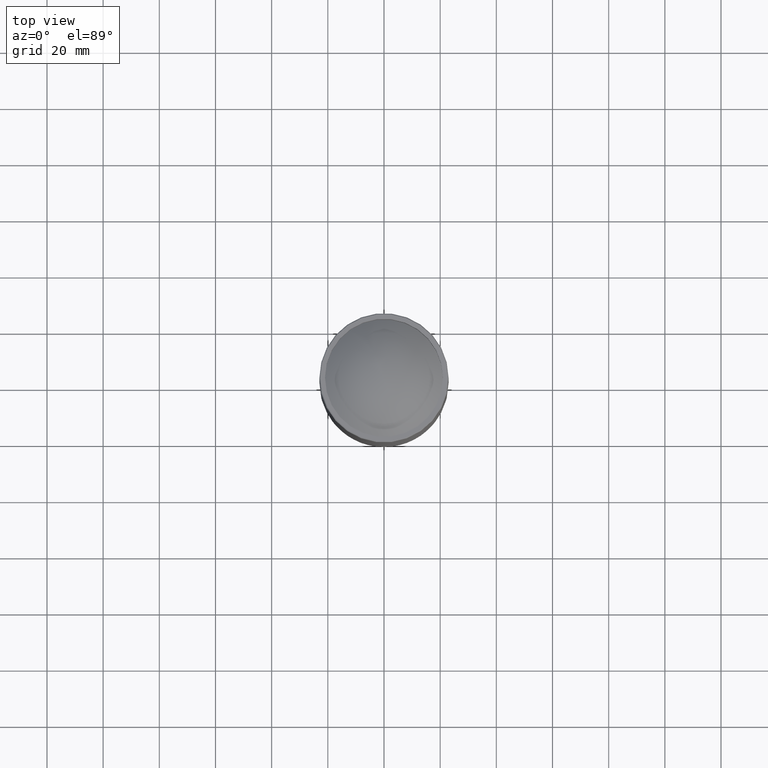
[diagram: clean part render]
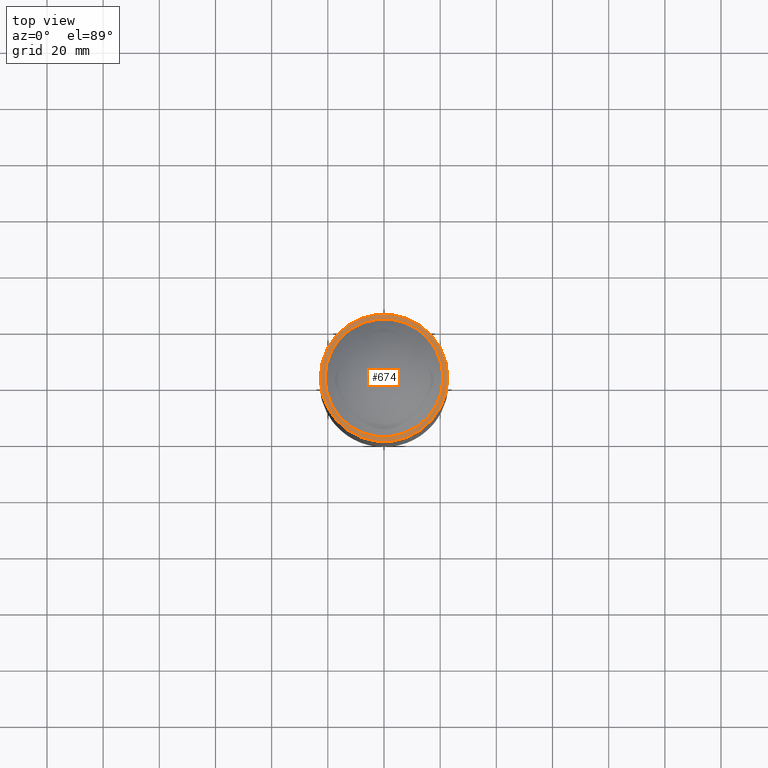
[diagram: same view with one face highlighted and labeled with its STEP entity id]
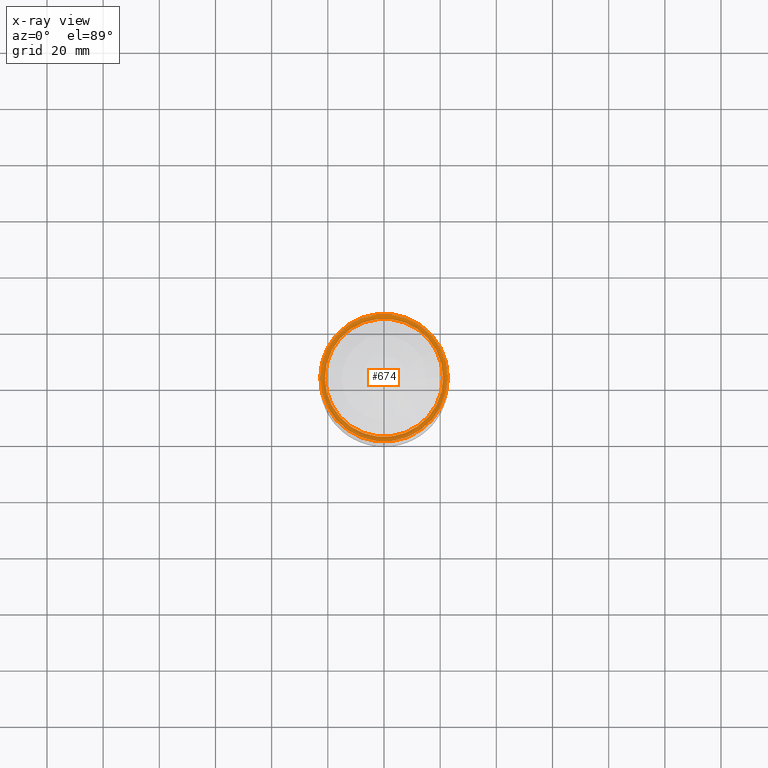
[diagram: x-ray of the same camera — body ghosted, the highlighted face saturated]
A machine part, top view. The second image highlights one B-rep face of the part: STEP entity #674.
The next image is the same camera in x-ray: the body ghosted, the highlighted face saturated — about 0% of this face is hidden behind the body in this view.
In plain terms, the highlighted planar face has unit normal (0, -0, -1).
Its self-contained STEP definition (entity closure, byte-faithful):
#96 = CARTESIAN_POINT ( 'NONE',  ( -22.70000000000012363, 4.374815137588440032E-15, -407.0000000000000000 ) ) ;
#149 = AXIS2_PLACEMENT_3D ( 'NONE', #767, #699, #259 ) ;
#152 = CIRCLE ( 'NONE', #521, 22.70000000000008100 ) ;
#167 = CARTESIAN_POINT ( 'NONE',  ( 20.99999999999995737, 4.374815137588440821E-15, -407.0000000000000000 ) ) ;
#224 = CARTESIAN_POINT ( 'NONE',  ( -4.336808689942017736E-14, 4.374815137588440821E-15, -407.0000000000000000 ) ) ;
#247 = EDGE_LOOP ( 'NONE', ( #637 ) ) ;
#249 = PLANE ( 'NONE',  #149 ) ;
#259 = DIRECTION ( 'NONE',  ( -1.000000000000000000, 0.000000000000000000, -1.578769008674755336E-16 ) ) ;
#269 = AXIS2_PLACEMENT_3D ( 'NONE', #224, #897, #815 ) ;
#286 = CARTESIAN_POINT ( 'NONE',  ( -4.336808689942017736E-14, 4.374815137588440032E-15, -407.0000000000000000 ) ) ;
#289 = DIRECTION ( 'NONE',  ( -1.000000000000000000, 0.000000000000000000, 0.000000000000000000 ) ) ;
#337 = ORIENTED_EDGE ( 'NONE', *, *, #409, .F. ) ;
#409 = EDGE_CURVE ( 'NONE', #599, #599, #152, .T. ) ;
#411 = EDGE_LOOP ( 'NONE', ( #337 ) ) ;
#517 = DIRECTION ( 'NONE',  ( 0.000000000000000000, 0.000000000000000000, -1.000000000000000000 ) ) ;
#521 = AXIS2_PLACEMENT_3D ( 'NONE', #286, #517, #289 ) ;
#568 = CIRCLE ( 'NONE', #269, 20.99999999999999645 ) ;
#599 = VERTEX_POINT ( 'NONE', #96 ) ;
#637 = ORIENTED_EDGE ( 'NONE', *, *, #859, .F. ) ;
#674 = ADVANCED_FACE ( 'NONE', ( #772, #704 ), #249, .F. ) ;
#699 = DIRECTION ( 'NONE',  ( 1.578769008674755336E-16, -9.997898196022507891E-17, -1.000000000000000000 ) ) ;
#704 = FACE_OUTER_BOUND ( 'NONE', #411, .T. ) ;
#752 = VERTEX_POINT ( 'NONE', #167 ) ;
#767 = CARTESIAN_POINT ( 'NONE',  ( -4.631200435159139195E-14, 21.75000000000000711, -407.0000000000000000 ) ) ;
#772 = FACE_BOUND ( 'NONE', #247, .T. ) ;
#815 = DIRECTION ( 'NONE',  ( 1.000000000000000000, 0.000000000000000000, 0.000000000000000000 ) ) ;
#859 = EDGE_CURVE ( 'NONE', #752, #752, #568, .T. ) ;
#897 = DIRECTION ( 'NONE',  ( 0.000000000000000000, 0.000000000000000000, 1.000000000000000000 ) ) ;